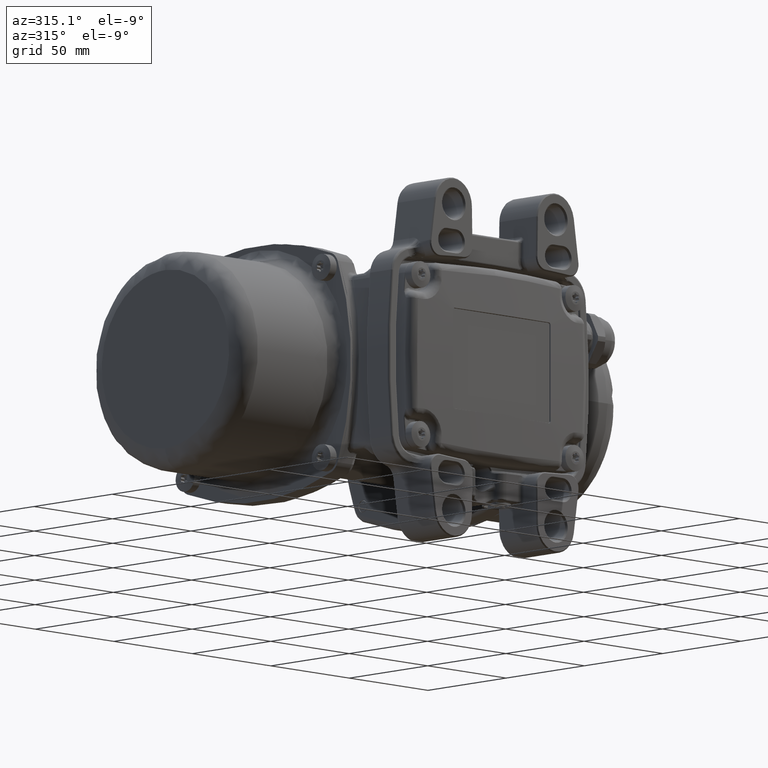
[diagram: clean part render]
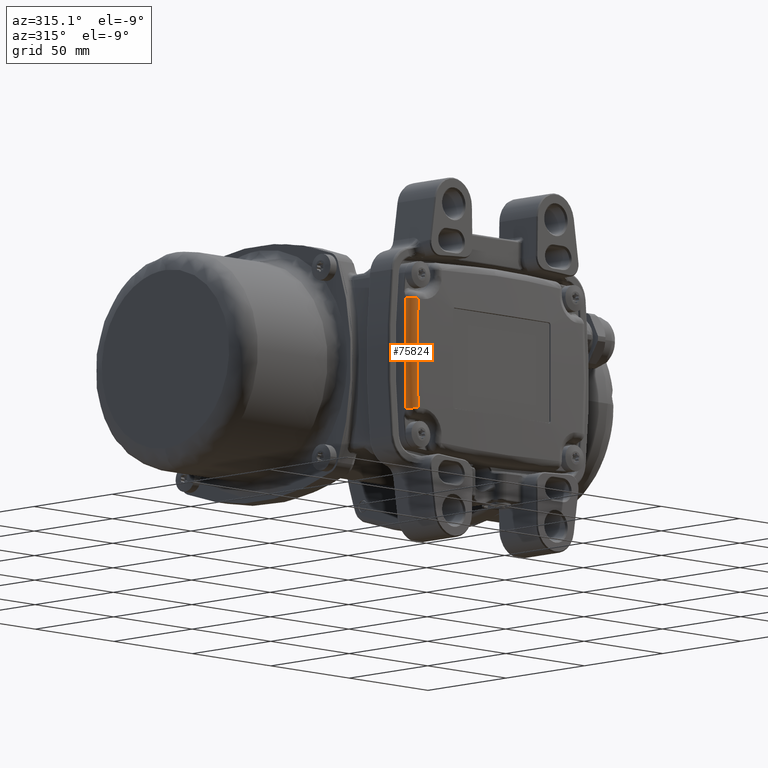
[diagram: same view with one face highlighted and labeled with its STEP entity id]
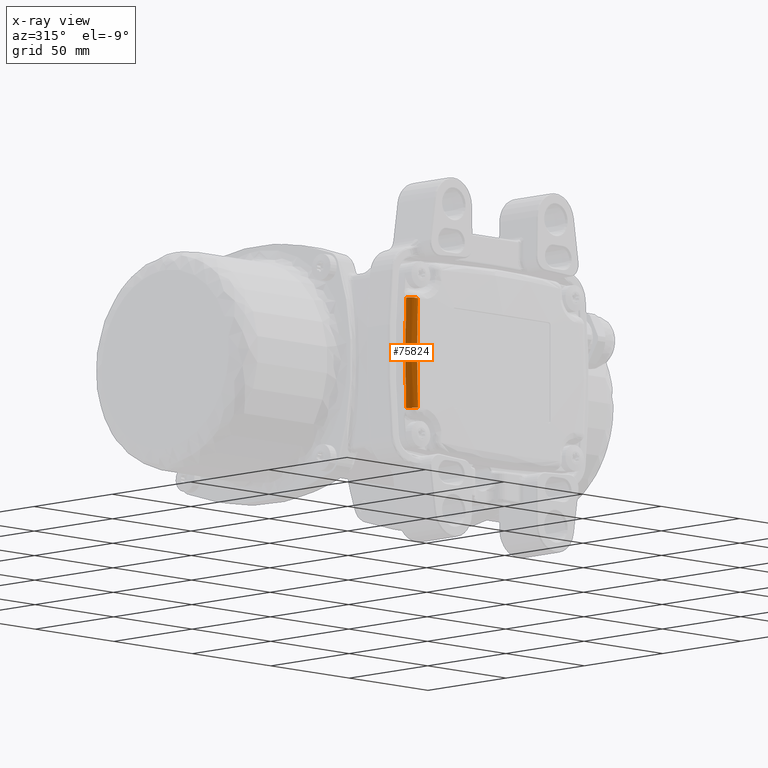
[diagram: x-ray of the same camera — body ghosted, the highlighted face saturated]
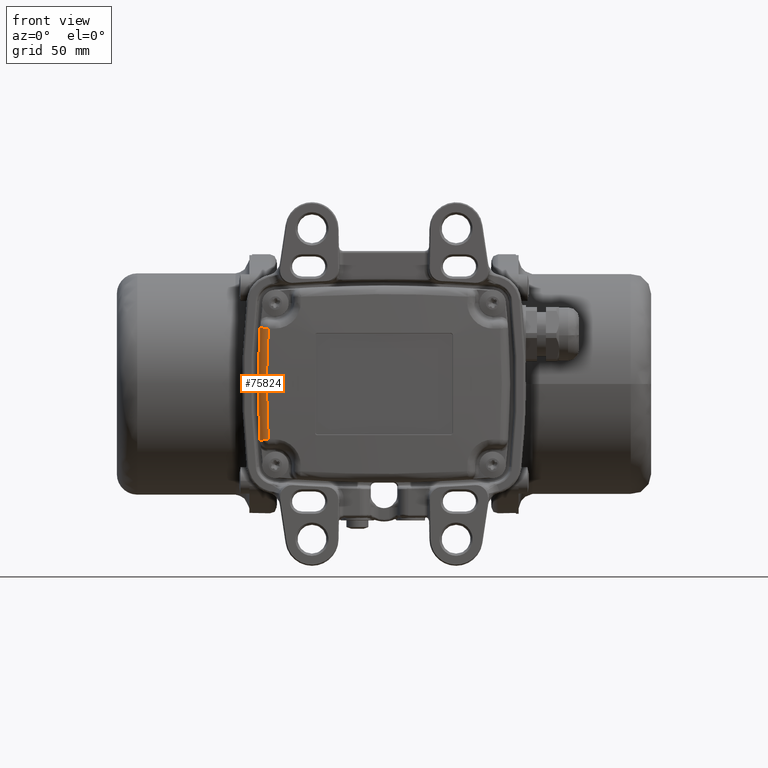
[diagram: same view with one face highlighted and labeled with its STEP entity id]
A machine part, auxiliary view. The second image highlights one B-rep face of the part: STEP entity #75824.
The next image is the same camera in x-ray: the body ghosted, the highlighted face saturated — about 0% of this face is hidden behind the body in this view.
A second angle (front view) of the same face is appended — the face is thin or edge-on in the first view.
In plain terms, the highlighted face is a freeform B-spline surface patch.
Its self-contained STEP definition (entity closure, byte-faithful):
#34 = CARTESIAN_POINT ( 'NONE',  ( -56.54372687311948900, 6.797007957081708800, -16.85816936053789300 ) ) ;
#133 = CARTESIAN_POINT ( 'NONE',  ( -55.15467830663425300, 4.732301355041635700, -25.26101415836726000 ) ) ;
#619 = CARTESIAN_POINT ( 'NONE',  ( -53.84929430940633200, 3.581049767574364200, -25.14942343095146900 ) ) ;
#4016 = CARTESIAN_POINT ( 'NONE',  ( -52.81524817203709400, 2.875063275354989400, 16.65728753360117400 ) ) ;
#5241 = CARTESIAN_POINT ( 'NONE',  ( -52.80462001595299900, 2.878866715644480000, 16.94422227913325000 ) ) ;
#6256 = CARTESIAN_POINT ( 'NONE',  ( -56.46984432935821000, 3.124111828232560400, 17.12025318728361300 ) ) ;
#6765 = CARTESIAN_POINT ( 'NONE',  ( -55.89617713123500000, 7.026152184689980400, -25.59056273725100200 ) ) ;
#11477 = CARTESIAN_POINT ( 'NONE',  ( -53.95955265496714800, 3.644108311633493800, -25.15966408407116700 ) ) ;
#12477 = CARTESIAN_POINT ( 'NONE',  ( -52.20099806787700200, 3.095023943256470100, -24.98583774727970000 ) ) ;
#16958 = VERTEX_POINT ( 'NONE', #144176 ) ;
#18120 = CARTESIAN_POINT ( 'NONE',  ( -56.85489549400779900, 6.686968419230279200, -8.530201338718120100 ) ) ;
#19152 = CARTESIAN_POINT ( 'NONE',  ( -56.53621485576360300, 6.799664455400330700, -17.06044547392365000 ) ) ;
#19556 = CARTESIAN_POINT ( 'NONE',  ( -53.56557041474853500, 3.438829795725058400, 25.12295695511121000 ) ) ;
#21080 = CARTESIAN_POINT ( 'NONE',  ( -53.15009433934889000, 3.276158207237501100, 25.08240781378634700 ) ) ;
#22610 = EDGE_CURVE ( 'NONE', #37987, #23135, #128535, .T. ) ;
#22631 = CARTESIAN_POINT ( 'NONE',  ( -55.91880712666700500, 7.018144221857659700, 25.28715300675060000 ) ) ;
#22866 = CARTESIAN_POINT ( 'NONE',  ( -54.09018572255705900, 3.724833009652430700, -25.17166261613391100 ) ) ;
#23135 = VERTEX_POINT ( 'NONE', #29588 ) ;
#23360 = CARTESIAN_POINT ( 'NONE',  ( -55.43720058833486800, 5.168022199749008100, -25.28041027120330100 ) ) ;
#24364 = CARTESIAN_POINT ( 'NONE',  ( -55.82563112221087200, 6.096746209818911100, -25.29926328316627600 ) ) ;
#24885 = CARTESIAN_POINT ( 'NONE',  ( -55.91029960696228300, 6.574125620877014200, -25.29701600352892800 ) ) ;
#28949 = CARTESIAN_POINT ( 'NONE',  ( -56.79071048267467600, 3.009811586062539800, 8.561426274329285500 ) ) ;
#29588 = CARTESIAN_POINT ( 'NONE',  ( -52.20099806788330500, 3.095023943256215200, 24.98583774725909700 ) ) ;
#30892 = CARTESIAN_POINT ( 'NONE',  ( -54.72983043787040500, 4.240144873113534300, 25.22775282830836800 ) ) ;
#30988 = CARTESIAN_POINT ( 'NONE',  ( -53.12111026464800300, 2.765606075351324700, 8.472089866892650500 ) ) ;
#31216 = ORIENTED_EDGE ( 'NONE', *, *, #126769, .T. ) ;
#32658 = ORIENTED_EDGE ( 'NONE', *, *, #131753, .T. ) ;
#33926 = EDGE_CURVE ( 'NONE', #23135, #143859, #111319, .T. ) ;
#37034 =( BOUNDED_SURFACE ( )  B_SPLINE_SURFACE ( 3, 2, ( 
 ( #86764, #73378, #6765 ),
 ( #112641, #77449, #19152 ),
 ( #42374, #89809, #18120 ),
 ( #30988, #28949, #76930 ),
 ( #5241, #6256, #76422 ),
 ( #135933, #40325, #52694 ) ),
 .UNSPECIFIED., .F., .F., .F. ) 
 B_SPLINE_SURFACE_WITH_KNOTS ( ( 4, 2, 4 ),
 ( 3, 3 ),
 ( -0.0002998756272861959800, 0.02498963560718300100, 0.05027914684165220300 ),
 ( 0.0000000000000000000, 1.000000000000000000 ),
 .UNSPECIFIED. ) 
 GEOMETRIC_REPRESENTATION_ITEM ( )  RATIONAL_B_SPLINE_SURFACE ( (
 ( 1.000000000000000000, 0.7364808726459130000, 1.000000000000000000),
 ( 1.000000000000000000, 0.7362536295298760500, 1.000000000000000000),
 ( 1.000000000000000000, 0.7361403274585729400, 1.000000000000000000),
 ( 1.000000000000000000, 0.7361403274585729400, 1.000000000000000000),
 ( 1.000000000000000000, 0.7362536295298730500, 1.000000000000000000),
 ( 1.000000000000000000, 0.7364808726459179900, 1.000000000000000000) ) ) 
 REPRESENTATION_ITEM ( '' )  SURFACE ( )  );
#37987 = VERTEX_POINT ( 'NONE', #122813 ) ;
#40325 = CARTESIAN_POINT ( 'NONE',  ( -55.82485284301493800, 3.354026167592616800, 25.68387283417799000 ) ) ;
#42279 = CARTESIAN_POINT ( 'NONE',  ( -53.32897227138540300, 3.340336092354762300, 25.09996167380713700 ) ) ;
#42374 = CARTESIAN_POINT ( 'NONE',  ( -53.12111026476350200, 2.765606075359015000, -8.472089866892810400 ) ) ;
#43305 = CARTESIAN_POINT ( 'NONE',  ( -54.05344673792927100, 3.692808312458886600, 25.16914390871919200 ) ) ;
#46588 = CARTESIAN_POINT ( 'NONE',  ( -54.82314542480429500, 4.335875369497173900, -25.23537325931181000 ) ) ;
#47092 = CARTESIAN_POINT ( 'NONE',  ( -54.85688167042610500, 4.371956424637611200, -25.23809431111696700 ) ) ;
#47590 = CARTESIAN_POINT ( 'NONE',  ( -54.81917999948903000, 4.331684695896155900, -25.23505205789214800 ) ) ;
#48090 = CARTESIAN_POINT ( 'NONE',  ( -54.57479917162739700, 4.087258944019456700, -25.21479323249791800 ) ) ;
#48350 = B_SPLINE_CURVE_WITH_KNOTS ( 'NONE', 3,
 ( #93581, #24885, #24364, #129806, #23360, #71300, #133, #142182, #59451, #141165, #47092, #117400, #105461, #46588, #47590, #107467, #48090, #83182, #130312, #22866, #81675, #11477, #128786, #129282, #619, #105971, #58418, #116901, #69775, #58946, #118929, #12477 ),
 .UNSPECIFIED., .F., .F.,
 ( 4, 2, 2, 2, 1, 1, 1, 1, 2, 2, 2, 2, 2, 1, 1, 2, 2, 2, 4 ),
 ( 0.0000000000000000000, 0.2499999999998457900, 0.3749999999997689100, 0.4374999999997304400, 0.4687499999997122900, 0.4843749999997034600, 0.4921874999996991900, 0.4960937499996970800, 0.4980468749996960200, 0.4999999999996949100, 0.6249999999997888400, 0.6874999999998341300, 0.7187499999998568900, 0.7343749999998667700, 0.7421874999998731000, 0.7460937499998764300, 0.7499999999998796500, 0.8749999999999397100, 1.000000000000000000 ),
 .UNSPECIFIED. ) ;
#52481 = CARTESIAN_POINT ( 'NONE',  ( -53.12111026476328100, 2.765606075358999900, -8.328623208490888900 ) ) ;
#52694 = CARTESIAN_POINT ( 'NONE',  ( -55.89617713123489300, 7.026152184689969700, 25.59056273725100200 ) ) ;
#54153 = CARTESIAN_POINT ( 'NONE',  ( -53.61061982944711000, 3.459553940860038400, 25.12730636155183500 ) ) ;
#55767 = EDGE_LOOP ( 'NONE', ( #58152, #31216, #32658, #116390 ) ) ;
#55796 = CARTESIAN_POINT ( 'NONE',  ( -55.91880712666700500, 7.018144221857659700, 25.28715300675060000 ) ) ;
#58152 = ORIENTED_EDGE ( 'NONE', *, *, #33926, .T. ) ;
#58418 = CARTESIAN_POINT ( 'NONE',  ( -53.82912627863848300, 3.569987257850432400, -25.14753950973361200 ) ) ;
#58946 = CARTESIAN_POINT ( 'NONE',  ( -52.73864269763325300, 3.158837036618589200, -25.04180874408112000 ) ) ;
#59451 = CARTESIAN_POINT ( 'NONE',  ( -54.97181313533043600, 4.500878233986460600, -25.24720356159344400 ) ) ;
#59913 = B_SPLINE_CURVE_WITH_KNOTS ( 'NONE', 3,
 ( #148809, #135406, #70711, #82084, #34, #81581 ),
 .UNSPECIFIED., .F., .F.,
 ( 4, 2, 4 ),
 ( 0.0000000000000000000, 0.4999999999999988900, 1.000000000000000000 ),
 .UNSPECIFIED. ) ;
#69775 = CARTESIAN_POINT ( 'NONE',  ( -53.28532115798105900, 3.313925978933235600, -25.09599672592213400 ) ) ;
#70711 = CARTESIAN_POINT ( 'NONE',  ( -56.85489549400779900, 6.686968419228181300, 8.429063786429649600 ) ) ;
#71300 = CARTESIAN_POINT ( 'NONE',  ( -55.22963868985120700, 4.839254765318155000, -25.26636948967452100 ) ) ;
#73378 = CARTESIAN_POINT ( 'NONE',  ( -55.82485284301498000, 3.354026167592565800, -25.68387283417796900 ) ) ;
#74684 = CARTESIAN_POINT ( 'NONE',  ( -52.81524817154768000, 2.875063275322027800, -16.65728753357098000 ) ) ;
#75824 = ADVANCED_FACE ( 'NONE', ( #99143 ), #37034, .T. ) ;
#76422 = CARTESIAN_POINT ( 'NONE',  ( -56.53621485573629700, 6.799664453996380000, 17.06044547395900000 ) ) ;
#76930 = CARTESIAN_POINT ( 'NONE',  ( -56.85489549400779900, 6.686968419228239900, 8.530201338717970900 ) ) ;
#77449 = CARTESIAN_POINT ( 'NONE',  ( -56.46984432809196600, 3.124111830368109500, -17.12025318713873300 ) ) ;
#78840 = CARTESIAN_POINT ( 'NONE',  ( -54.79481984854170700, 4.305997456903655000, 25.23307730556904000 ) ) ;
#79365 = CARTESIAN_POINT ( 'NONE',  ( -54.59351779785735200, 4.110832625356552600, 25.21639407375306500 ) ) ;
#80906 = CARTESIAN_POINT ( 'NONE',  ( -55.82561551468905500, 6.096683928534621300, 25.29926284560847800 ) ) ;
#81581 = CARTESIAN_POINT ( 'NONE',  ( -55.91880712666740300, 7.018144221878359600, -25.28715300675014900 ) ) ;
#81675 = CARTESIAN_POINT ( 'NONE',  ( -54.03913403237165600, 3.692255956672365200, -25.16699641424518000 ) ) ;
#81947 = CARTESIAN_POINT ( 'NONE',  ( -55.18010568795025300, 4.712272833249513400, 25.26431048417136800 ) ) ;
#82084 = CARTESIAN_POINT ( 'NONE',  ( -56.85489549400780600, 6.686968419230199200, -8.429063786429841400 ) ) ;
#83182 = CARTESIAN_POINT ( 'NONE',  ( -54.32746663698002000, 3.889864055285705100, -25.19305456683057500 ) ) ;
#86548 = CARTESIAN_POINT ( 'NONE',  ( -52.20099806788330500, 3.095023943256215200, 24.98583774725909700 ) ) ;
#86764 = CARTESIAN_POINT ( 'NONE',  ( -52.16898109690250600, 3.106489148265655100, -25.41623387258655200 ) ) ;
#89809 = CARTESIAN_POINT ( 'NONE',  ( -56.79071048279164600, 3.009811586004046200, -8.561426274329434700 ) ) ;
#90228 = CARTESIAN_POINT ( 'NONE',  ( -53.52148193795473900, 3.418992270108321300, 25.11869412186036100 ) ) ;
#90752 = CARTESIAN_POINT ( 'NONE',  ( -54.35475344453437400, 3.910042002434216600, 25.19590891035791100 ) ) ;
#91286 = CARTESIAN_POINT ( 'NONE',  ( -54.66276207387407700, 4.174238502548630200, 25.22221423047896500 ) ) ;
#92828 = CARTESIAN_POINT ( 'NONE',  ( -55.91029889280141400, 6.574086382545381500, 25.29701637025823400 ) ) ;
#93581 = CARTESIAN_POINT ( 'NONE',  ( -55.91880712666740300, 7.018144221878359600, -25.28715300675014900 ) ) ;
#99143 = FACE_OUTER_BOUND ( 'NONE', #55767, .T. ) ;
#102180 = CARTESIAN_POINT ( 'NONE',  ( -52.20099806788330500, 3.095023943256215200, 24.98583774725909700 ) ) ;
#105225 = CARTESIAN_POINT ( 'NONE',  ( -55.46116609199556500, 5.164650660999665600, 25.28298775630271700 ) ) ;
#105461 = CARTESIAN_POINT ( 'NONE',  ( -54.82879283877336000, 4.341867319064491900, -25.23583005881033600 ) ) ;
#105971 = CARTESIAN_POINT ( 'NONE',  ( -53.83515845014196800, 3.573282339892491800, -25.14810329564962600 ) ) ;
#107467 = CARTESIAN_POINT ( 'NONE',  ( -54.70892192433391400, 4.215420014636193500, -25.22611413367190300 ) ) ;
#111319 = B_SPLINE_CURVE_WITH_KNOTS ( 'NONE', 3,
 ( #102180, #138897, #150743, #149227, #21080, #42279, #124991, #90228, #19556, #138374, #54153, #136854, #43305, #90752, #126026, #79365, #91286, #30892, #137864, #78840, #81947, #105225, #80906, #92828, #22631 ),
 .UNSPECIFIED., .F., .F.,
 ( 4, 2, 2, 1, 1, 2, 2, 2, 2, 1, 2, 2, 2, 4 ),
 ( 0.0000000000000000000, 0.1249999999999991100, 0.1874999999999986100, 0.2187499999999983100, 0.2343749999999996700, 0.2421874999999987800, 0.2499999999999978900, 0.3749999999999995600, 0.4375000000000003900, 0.4687500000000006100, 0.4843750000000005000, 0.5000000000000004400, 0.7500000000000002200, 1.000000000000000000 ),
 .UNSPECIFIED. ) ;
#112641 = CARTESIAN_POINT ( 'NONE',  ( -52.80462001544259500, 2.878866715610110200, -16.94422227910214900 ) ) ;
#116390 = ORIENTED_EDGE ( 'NONE', *, *, #22610, .T. ) ;
#116901 = CARTESIAN_POINT ( 'NONE',  ( -53.55863854387753500, 3.423494582372217800, -25.12222976649922400 ) ) ;
#117400 = CARTESIAN_POINT ( 'NONE',  ( -54.83724965171687400, 4.350867808904868500, -25.23651334882213200 ) ) ;
#118929 = CARTESIAN_POINT ( 'NONE',  ( -52.46540080951513100, 3.113197166766466900, -25.01386574450101800 ) ) ;
#122813 = CARTESIAN_POINT ( 'NONE',  ( -52.20099806787700200, 3.095023943256470100, -24.98583774727970000 ) ) ;
#122829 = CARTESIAN_POINT ( 'NONE',  ( -53.12111026464972200, 2.765606075351438900, 8.328623208490796500 ) ) ;
#124991 = CARTESIAN_POINT ( 'NONE',  ( -53.41816298598907100, 3.374750176562499400, 25.10867191555029600 ) ) ;
#126026 = CARTESIAN_POINT ( 'NONE',  ( -54.45238038239736500, 3.987538627810948800, 25.20439237915477200 ) ) ;
#126769 = EDGE_CURVE ( 'NONE', #143859, #16958, #59913, .T. ) ;
#128535 = B_SPLINE_CURVE_WITH_KNOTS ( 'NONE', 3,
 ( #133684, #74684, #52481, #122829, #4016, #86548 ),
 .UNSPECIFIED., .F., .F.,
 ( 4, 2, 4 ),
 ( 0.0000000000000000000, 0.4999999999999977800, 1.000000000000000000 ),
 .UNSPECIFIED. ) ;
#128786 = CARTESIAN_POINT ( 'NONE',  ( -53.91901161386184800, 3.620214283223294000, -25.15591469935357300 ) ) ;
#129282 = CARTESIAN_POINT ( 'NONE',  ( -53.87040512428190900, 3.592733590118788500, -25.15139302933160100 ) ) ;
#129806 = CARTESIAN_POINT ( 'NONE',  ( -55.55230630106231600, 5.397719034751252000, -25.28705793245280400 ) ) ;
#130312 = CARTESIAN_POINT ( 'NONE',  ( -54.23735464899593200, 3.823285258542052500, -25.18501519197935300 ) ) ;
#131753 = EDGE_CURVE ( 'NONE', #16958, #37987, #48350, .T. ) ;
#133684 = CARTESIAN_POINT ( 'NONE',  ( -52.20099806787700200, 3.095023943256470100, -24.98583774727970000 ) ) ;
#135406 = CARTESIAN_POINT ( 'NONE',  ( -56.54372687309284400, 6.797007955710805400, 16.85816936057233300 ) ) ;
#135933 = CARTESIAN_POINT ( 'NONE',  ( -52.16898109690250600, 3.106489148265655100, 25.41623387258655200 ) ) ;
#136854 = CARTESIAN_POINT ( 'NONE',  ( -53.84134108744002100, 3.568476753558371200, 25.14954388419938500 ) ) ;
#137864 = CARTESIAN_POINT ( 'NONE',  ( -54.77403941400418600, 4.284620909752578500, 25.23138163535561800 ) ) ;
#138374 = CARTESIAN_POINT ( 'NONE',  ( -53.59491658034093600, 3.452249502922269700, 25.12579137351163500 ) ) ;
#138897 = CARTESIAN_POINT ( 'NONE',  ( -52.43268355402889100, 3.110940956436516900, 25.01015952389020900 ) ) ;
#141165 = CARTESIAN_POINT ( 'NONE',  ( -54.89574045967198400, 4.414479633167668600, -25.24120258396450100 ) ) ;
#142182 = CARTESIAN_POINT ( 'NONE',  ( -55.03411855840677400, 4.577141608620001600, -25.25197461994713800 ) ) ;
#143859 = VERTEX_POINT ( 'NONE', #55796 ) ;
#144176 = CARTESIAN_POINT ( 'NONE',  ( -55.91880712666740300, 7.018144221878359600, -25.28715300675014900 ) ) ;
#148809 = CARTESIAN_POINT ( 'NONE',  ( -55.91880712666700500, 7.018144221857659700, 25.28715300675060000 ) ) ;
#149227 = CARTESIAN_POINT ( 'NONE',  ( -53.03018563173613800, 3.239582858224727700, 25.07052754954480600 ) ) ;
#150743 = CARTESIAN_POINT ( 'NONE',  ( -52.67109980642464300, 3.147901557706660900, 25.03456240275479100 ) ) ;